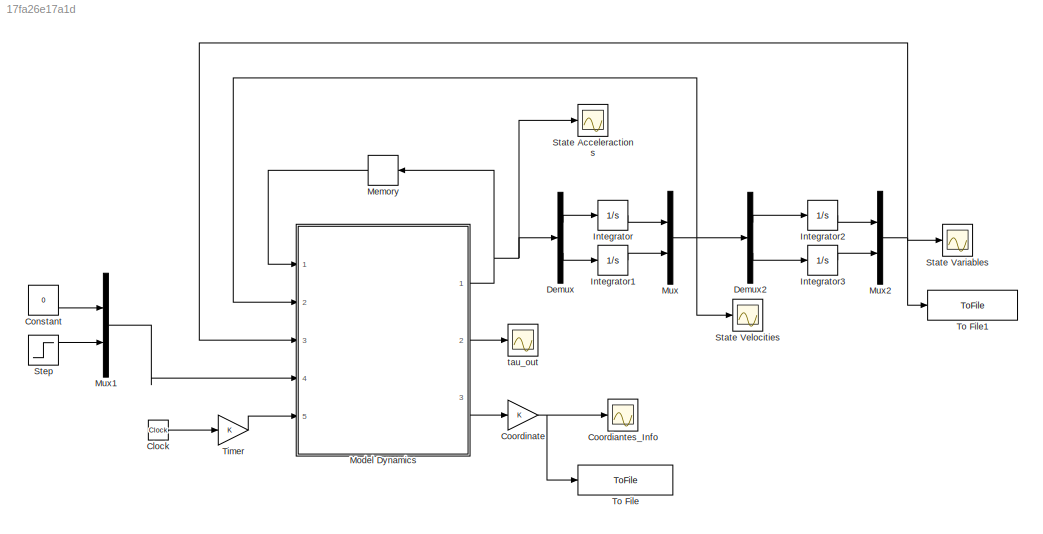
MODEL slx_17fa26e17a1d
KIND model
CONFIG AbsTol = auto
CONFIG EnableMultiTasking = off
CONFIG FixedStep = auto
CONFIG MaxStep = 0.00001
CONFIG MinStep = 0.0000000001
CONFIG RelTol = 1e-5
CONFIG SampleTimeConstraint = Unconstrained
CONFIG SolverName = ode15s
CONFIG StartTime = 0.0
CONFIG StopTime = 10.0
BLOCK [Clock] Clock
BLOCK [Constant] Constant
  Value = 0
BLOCK [Scope] Coordiantes_Info
  Floating = off
  NumInputPorts = 1
  Ports = [1]
  ScopeSpecificationString = Simulink.scopes.TimeScopeBlockCfg('CurrentConfiguration', extmgr.ConfigurationSet(extmgr.Configuration('Core','General UI',true),extmgr.Configuration('Core','Source UI',true),extmgr.Configuration('Sources','WiredSimulink',true,'DataLoggingVariableName','ScopeData1'),extmgr.Configuration('Visuals','Time Domain',true),extmgr.Configuration('Tools','Plot Navigation',true),extmgr.Configuration('Tools',...<+40ch>
BLOCK [Gain] Coordinate
BLOCK [Demux] Demux
  Outputs = 2
  Ports = [1, 2]
BLOCK [Demux] Demux2
  Outputs = 2
  Ports = [1, 2]
BLOCK [Integrator] Integrator
  Ports = [1, 1]
BLOCK [Integrator] Integrator1
  Ports = [1, 1]
BLOCK [Integrator] Integrator2
  Ports = [1, 1]
BLOCK [Integrator] Integrator3
  Ports = [1, 1]
BLOCK [Memory] Memory
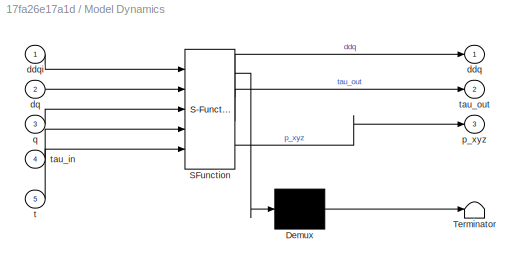
BLOCK [SubSystem] Model Dynamics
  ErrorFcn = StateflowTranslatetranslate
  PermitHierarchicalResolution = ExplicitOnly
  Ports = [5, 3]
  RequestExecContextInheritance = off
  SFBlockType = MATLAB Function
  TreatAsAtomicUnit = on
BLOCK [Demux] Model Dynamics/ Demux 
  Outputs = 1
  Ports = [1, 1]
BLOCK [S-Function] Model Dynamics/ SFunction 
  EnableBusSupport = on
  FunctionName = sf_sfun
  PortCounts = [5 4]
  Ports = [5, 4]
  SFcnIsStateOwnerBlock = off
  SFunctionDeploymentMode = off
  Tag = Stateflow S-Function 2
BLOCK [Terminator] Model Dynamics/ Terminator 
BLOCK [Outport] Model Dynamics/ddq
BLOCK [Inport] Model Dynamics/ddqi
BLOCK [Inport] Model Dynamics/dq
  Port = 2
BLOCK [Outport] Model Dynamics/p_xyz
  Port = 3
BLOCK [Inport] Model Dynamics/q
  Port = 3
BLOCK [Inport] Model Dynamics/t
  Port = 5
BLOCK [Inport] Model Dynamics/tau_in
  Port = 4
BLOCK [Outport] Model Dynamics/tau_out
  Port = 2
BLOCK [Mux] Mux
  DisplayOption = bar
  Inputs = 2
  Ports = [2, 1]
BLOCK [Mux] Mux1
  DisplayOption = bar
  Inputs = 2
  Ports = [2, 1]
BLOCK [Mux] Mux2
  DisplayOption = bar
  Inputs = 2
  Ports = [2, 1]
BLOCK [Scope] State Acceleractions
  Floating = off
  NumInputPorts = 1
  Ports = [1]
  ScopeSpecificationString = Simulink.scopes.TimeScopeBlockCfg('CurrentConfiguration', extmgr.ConfigurationSet(extmgr.Configuration('Core','General UI',true),extmgr.Configuration('Core','Source UI',true),extmgr.Configuration('Sources','WiredSimulink',true,'DataLoggingVariableName','ScopeData4'),extmgr.Configuration('Visuals','Time Domain',true),extmgr.Configuration('Tools','Plot Navigation',true),extmgr.Configuration('Tools',...<+58ch>
BLOCK [Scope] State Variables
  Floating = off
  NumInputPorts = 1
  Ports = [1]
  ScopeSpecificationString = Simulink.scopes.TimeScopeBlockCfg('CurrentConfiguration', extmgr.ConfigurationSet(extmgr.Configuration('Core','General UI',true),extmgr.Configuration('Core','Source UI',true),extmgr.Configuration('Sources','WiredSimulink',true,'DataLoggingVariableName','ScopeData2'),extmgr.Configuration('Visuals','Time Domain',true),extmgr.Configuration('Tools','Plot Navigation',true),extmgr.Configuration('Tools',...<+40ch>
BLOCK [Scope] State Velocities
  Floating = off
  NumInputPorts = 1
  Ports = [1]
  ScopeSpecificationString = Simulink.scopes.TimeScopeBlockCfg('CurrentConfiguration', extmgr.ConfigurationSet(extmgr.Configuration('Core','General UI',true),extmgr.Configuration('Core','Source UI',true),extmgr.Configuration('Sources','WiredSimulink',true,'DataLoggingVariableName','ScopeData3'),extmgr.Configuration('Visuals','Time Domain',true),extmgr.Configuration('Tools','Plot Navigation',true),extmgr.Configuration('Tools',...<+40ch>
BLOCK [Step] Step
  After = 0
  Before = 003
  SampleTime = 0
BLOCK [Gain] Timer
BLOCK [ToFile] To File
  Filename = Joint_Positionmat
  Ports = [1]
  SaveFormat = Timeseries
BLOCK [ToFile] To File1
  Filename = Output_Statesmat
  Ports = [1]
  SaveFormat = Timeseries
BLOCK [Scope] tau_out
  Floating = off
  NumInputPorts = 1
  Ports = [1]
  ScopeSpecificationString = Simulink.scopes.TimeScopeBlockCfg('CurrentConfiguration', extmgr.ConfigurationSet(extmgr.Configuration('Core','General UI',true),extmgr.Configuration('Core','Source UI',true),extmgr.Configuration('Sources','WiredSimulink',true),extmgr.Configuration('Visuals','Time Domain',true,'SerializedDisplays',{struct('MinYLimReal','-10','MaxYLimReal','10','YLabelReal','','MinYLimMag','0','MaxYLimMag','10','Le...<+772ch>
LINE Clock:1 -> Timer:1
LINE Constant:1 -> Mux1:1
NET Coordinate:1 -> Coordiantes_Info:1, To File:1
LINE Demux2:1 -> Integrator2:1
LINE Demux2:2 -> Integrator3:1
LINE Demux:1 -> Integrator:1
LINE Demux:2 -> Integrator1:1
LINE Integrator1:1 -> Mux:2
LINE Integrator2:1 -> Mux2:1
LINE Integrator3:1 -> Mux2:2
LINE Integrator:1 -> Mux:1
LINE Memory:1 -> Model Dynamics:1
NET Model Dynamics:1 -> Demux:1, Memory:1, State Acceleractions:1
LINE Model Dynamics:2 -> tau_out:1
LINE Model Dynamics:3 -> Coordinate:1
LINE Mux1:1 -> Model Dynamics:4
NET Mux2:1 -> Model Dynamics:3, State Variables:1, To File1:1
NET Mux:1 -> Demux2:1, Model Dynamics:2, State Velocities:1
LINE Step:1 -> Mux1:2
LINE Timer:1 -> Model Dynamics:5
note: NET lines group one-source signal fan-out (src -> all destinations, sorted); 1:1 wires keep LINE
CHART Model Dynamics states=1 transitions=1
  STATE_LABEL 'eML_blk_kernel()'
  STATE_LABEL "SCRIPT:\nfunction [ddq,tau_out,p_xyz] = Two_Link_SRA_Dynamics(ddqi,dq,q,tau_in,t)\n\n% Similar to C or C++, we have to claim the function we are going to use\n% externally\ncoder.extrinsic('sym');\ncoder.extrinsic('symfun');\ncoder.extrinsic('jacobian');\ncoder.extrinsic('diff');\ncoder.extrinsic('subs');\ncoder.extrinsic('double');\n\n% Fixed position in inertia frame\npfx=-1;\npfy=1;\n\n% The number of link for...<+3608ch>"
CHART  states=0 transitions=0
